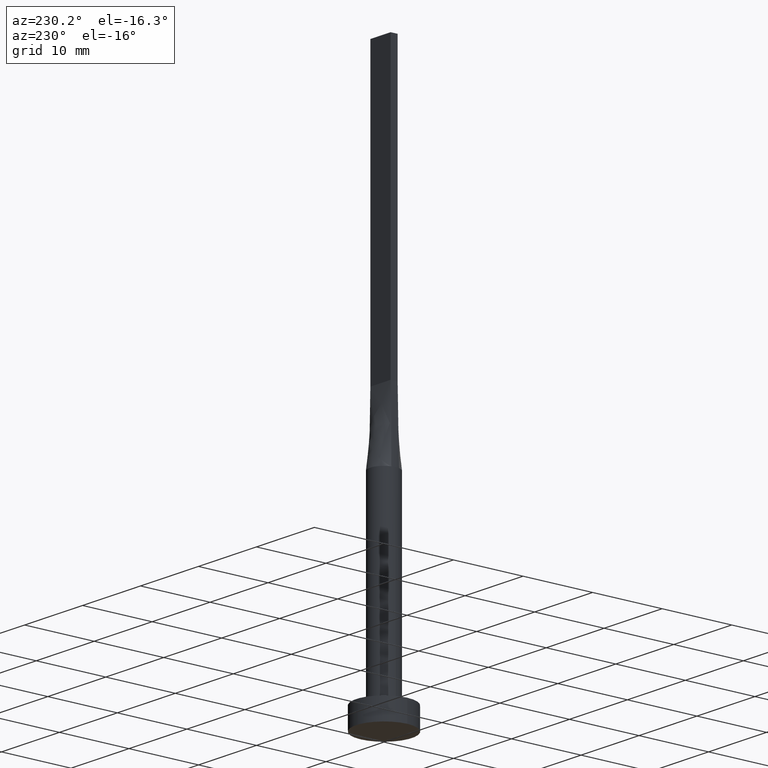
[diagram: clean part render]
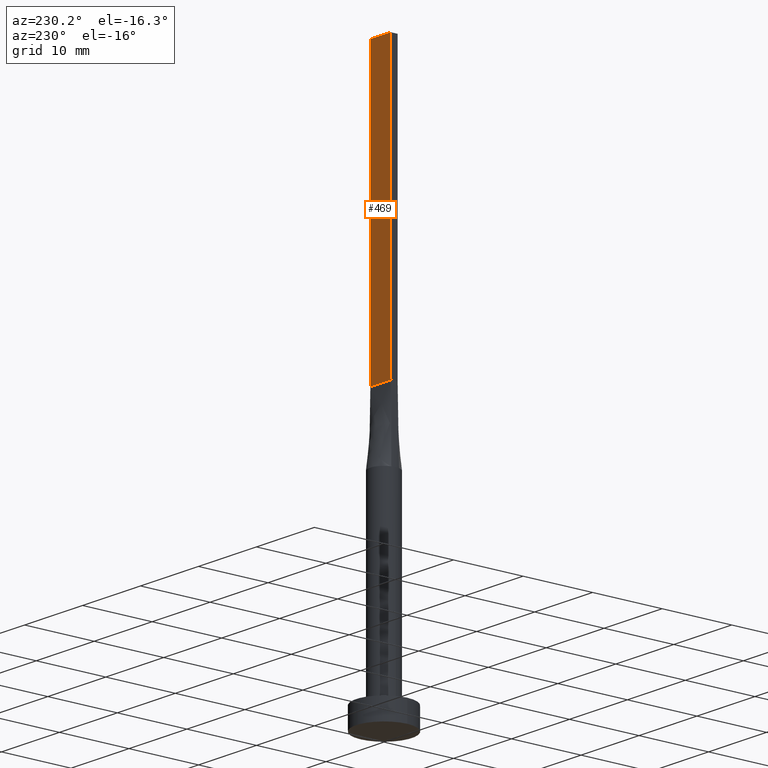
[diagram: same view with one face highlighted and labeled with its STEP entity id]
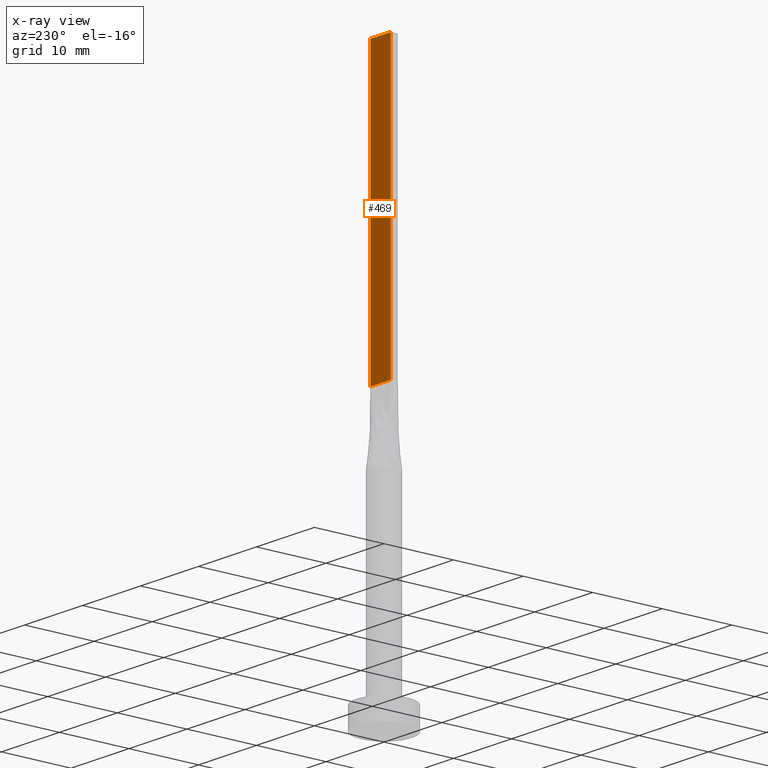
[diagram: x-ray of the same camera — body ghosted, the highlighted face saturated]
A machine part, auxiliary view. The second image highlights one B-rep face of the part: STEP entity #469.
The next image is the same camera in x-ray: the body ghosted, the highlighted face saturated — about 0% of this face is hidden behind the body in this view.
In plain terms, the highlighted planar face has unit normal (0, -1, 0).
Its self-contained STEP definition (entity closure, byte-faithful):
#3 = EDGE_CURVE ( 'NONE', #328, #165, #161, .T. ) ;
#4 = FACE_OUTER_BOUND ( 'NONE', #305, .T. ) ;
#40 = LINE ( 'NONE', #492, #478 ) ;
#83 = ORIENTED_EDGE ( 'NONE', *, *, #3, .F. ) ;
#130 = DIRECTION ( 'NONE',  ( -1.000000000000000000, -0.000000000000000000, -0.000000000000000000 ) ) ;
#132 = EDGE_CURVE ( 'NONE', #413, #165, #172, .T. ) ;
#151 = CARTESIAN_POINT ( 'NONE',  ( -1.749999999999999778, 0.5000000000000002220, 80.00000000000000000 ) ) ;
#161 = LINE ( 'NONE', #205, #541 ) ;
#165 = VERTEX_POINT ( 'NONE', #551 ) ;
#172 = LINE ( 'NONE', #539, #214 ) ;
#174 = PLANE ( 'NONE',  #517 ) ;
#198 = CARTESIAN_POINT ( 'NONE',  ( 1.749999999999999778, 0.5000000000000002220, 80.00000000000000000 ) ) ;
#205 = CARTESIAN_POINT ( 'NONE',  ( -1.749999999999999778, 0.5000000000000002220, 80.00000000000000000 ) ) ;
#206 = CARTESIAN_POINT ( 'NONE',  ( 1.749999999999999778, 0.5000000000000002220, 80.00000000000000000 ) ) ;
#212 = VECTOR ( 'NONE', #417, 1000.000000000000000 ) ;
#214 = VECTOR ( 'NONE', #130, 1000.000000000000000 ) ;
#220 = DIRECTION ( 'NONE',  ( -1.000000000000000000, 0.000000000000000000, 0.000000000000000000 ) ) ;
#245 = ORIENTED_EDGE ( 'NONE', *, *, #388, .F. ) ;
#261 = DIRECTION ( 'NONE',  ( 0.000000000000000000, -1.000000000000000000, 0.000000000000000000 ) ) ;
#273 = DIRECTION ( 'NONE',  ( 0.000000000000000000, -0.000000000000000000, -1.000000000000000000 ) ) ;
#305 = EDGE_LOOP ( 'NONE', ( #392, #83, #245, #397 ) ) ;
#306 = CARTESIAN_POINT ( 'NONE',  ( 1.749999999999999778, 0.5000000000000002220, 40.00000000000000000 ) ) ;
#317 = CARTESIAN_POINT ( 'NONE',  ( 1.749999999999999778, 0.5000000000000002220, 80.00000000000000000 ) ) ;
#328 = VERTEX_POINT ( 'NONE', #151 ) ;
#341 = VERTEX_POINT ( 'NONE', #198 ) ;
#388 = EDGE_CURVE ( 'NONE', #341, #328, #40, .T. ) ;
#392 = ORIENTED_EDGE ( 'NONE', *, *, #132, .T. ) ;
#397 = ORIENTED_EDGE ( 'NONE', *, *, #555, .T. ) ;
#413 = VERTEX_POINT ( 'NONE', #306 ) ;
#417 = DIRECTION ( 'NONE',  ( -0.000000000000000000, -0.000000000000000000, -1.000000000000000000 ) ) ;
#457 = LINE ( 'NONE', #317, #212 ) ;
#469 = ADVANCED_FACE ( 'NONE', ( #4 ), #174, .F. ) ;
#478 = VECTOR ( 'NONE', #220, 1000.000000000000000 ) ;
#492 = CARTESIAN_POINT ( 'NONE',  ( 1.749999999999999778, 0.5000000000000002220, 80.00000000000000000 ) ) ;
#517 = AXIS2_PLACEMENT_3D ( 'NONE', #206, #261, #273 ) ;
#539 = CARTESIAN_POINT ( 'NONE',  ( -1.749999999999999778, 0.5000000000000002220, 40.00000000000000000 ) ) ;
#541 = VECTOR ( 'NONE', #575, 1000.000000000000000 ) ;
#551 = CARTESIAN_POINT ( 'NONE',  ( -1.749999999999999778, 0.5000000000000002220, 40.00000000000000000 ) ) ;
#555 = EDGE_CURVE ( 'NONE', #341, #413, #457, .T. ) ;
#575 = DIRECTION ( 'NONE',  ( -0.000000000000000000, -0.000000000000000000, -1.000000000000000000 ) ) ;